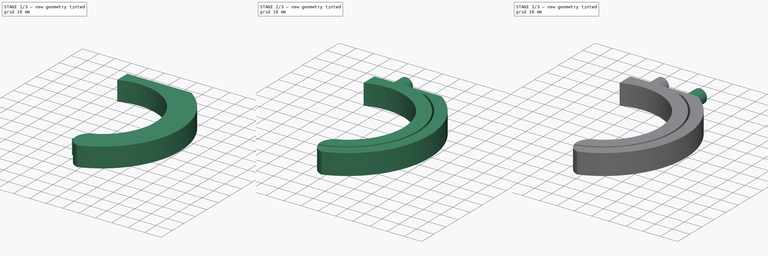
[diagram: build sequence overview — one tinted view per stage of 3, left to right]
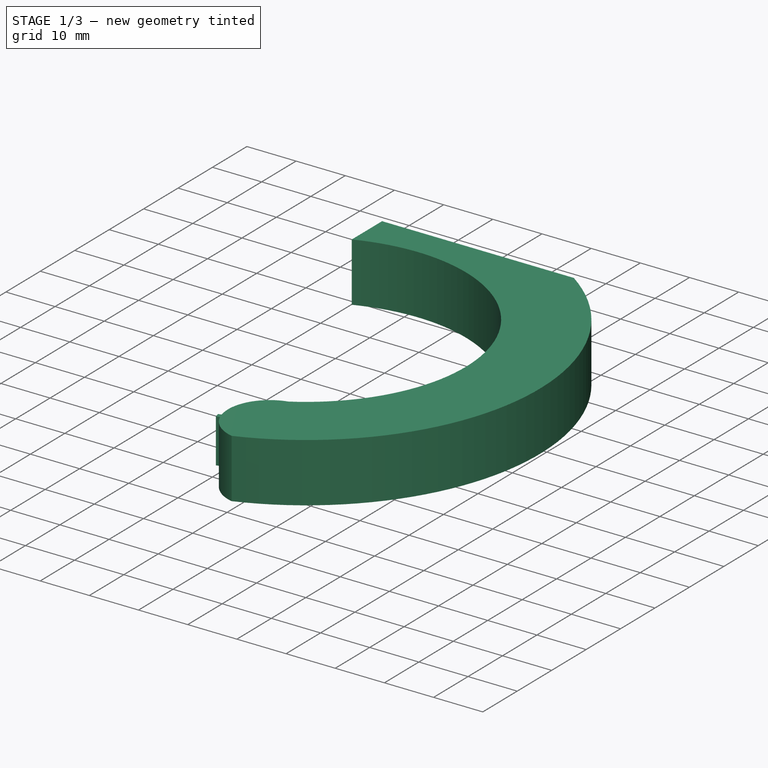
[diagram: stage 1 of 3 — iso view after this stage's code; geometry added in this stage tinted green]
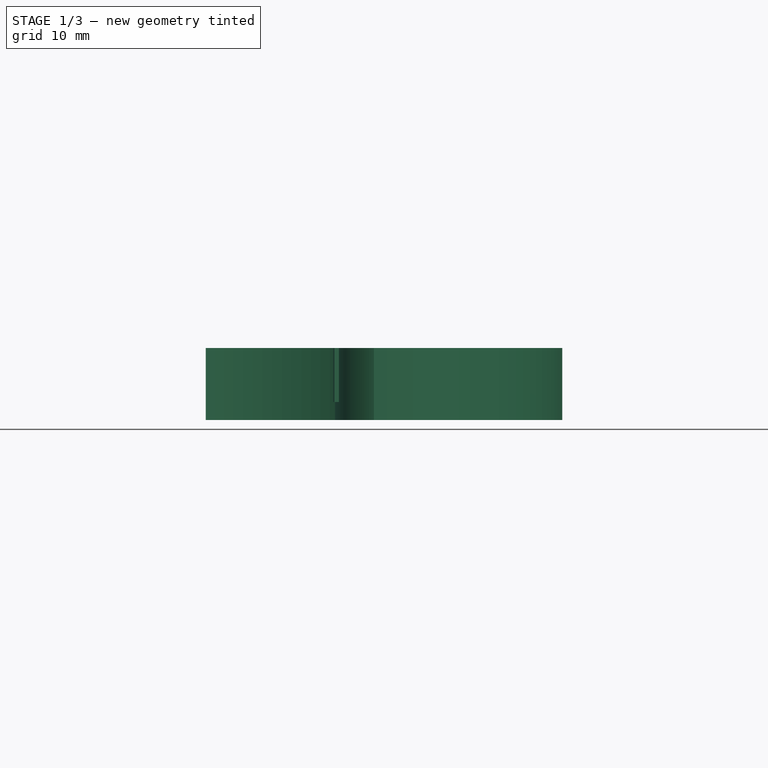
[diagram: stage 1 of 3 — front view after this stage's code; geometry added in this stage tinted green]
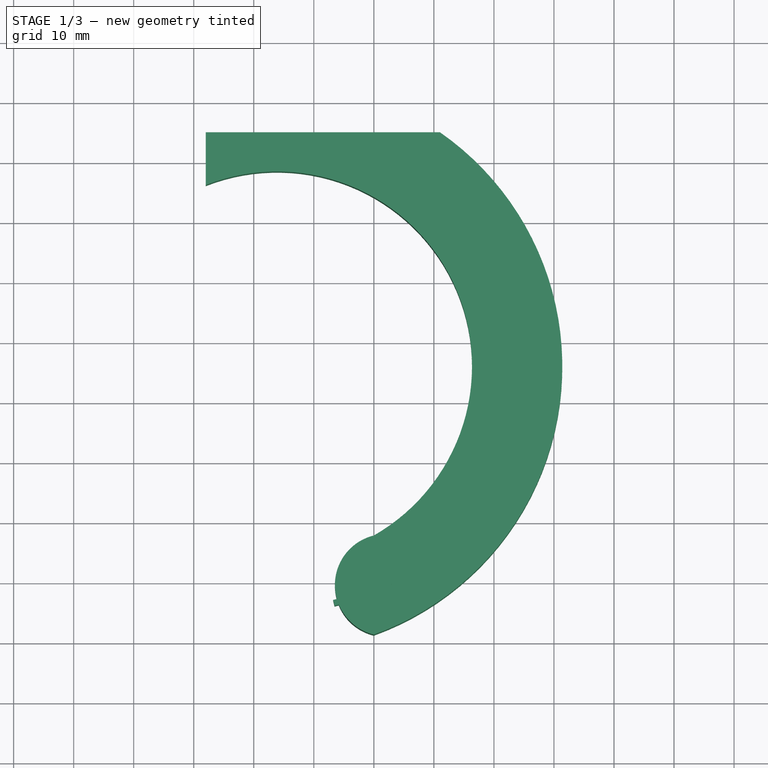
[diagram: stage 1 of 3 — top view after this stage's code; geometry added in this stage tinted green]
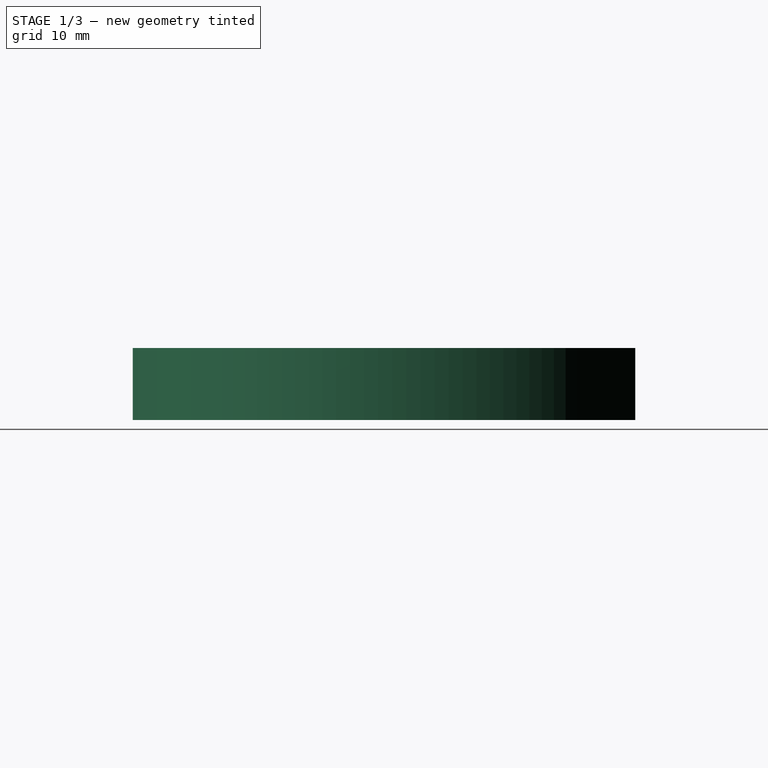
[diagram: stage 1 of 3 — right view after this stage's code; geometry added in this stage tinted green]
FCSTD DOCUMENT  (FreeCAD 0.15R4671 (Git))
Label: Holder_V5_Left
License: All rights reserved
LicenseURL: http://en.wikipedia.org/wiki/All_rights_reserved
objects: Sketcher::SketchObject×3, Part::Cylinder×2, PartDesign::Pad×2, Part::Box×1, Part::Cut×1
note: 11 computed .brp shape members not serialized (recipe doc carries the construction recipe); baked Part::Feature solids carry a one-line shape summary decoded from their .brp

FEATURE [Sketcher::SketchObject] Sketch  label="Ref_sketch"
  Placement = pos=(0,-18,-4) rot=(1,0,0;3.14159rad)
  sketch-geometry (2):
    g0: Circle CenterX=4 CenterY=36 CenterZ=0 NormalX=0 NormalY=0 NormalZ=1 Radius=47.5
    g1: Circle CenterX=4 CenterY=36 CenterZ=0 NormalX=0 NormalY=0 NormalZ=1 Radius=32.5
  constraints (6):
    c: Radius(g0) = 47.5
    c: DistanceY(g-1,g0) = 36
    c: DistanceX(g-1,g0) = 4
    c: Radius(g1) = 32.5
    c: DistanceY(g-1,g1) = 36
    c: DistanceX(g-1,g1) = 4
FEATURE [Sketcher::SketchObject] Sketch001
  Placement = pos=(0,-18,-4) rot=(1,0,0;3.14159rad)
  sketch-geometry (5):
    g0: ArcOfCircle CenterX=3.89118 CenterY=36.0046 CenterZ=0 NormalX=0 NormalY=0 NormalZ=1 Radius=47.5 StartAngle=5.31976 EndAngle=7.50799
    g1: ArcOfCircle CenterX=3.89118 CenterY=36.0046 CenterZ=0 NormalX=0 NormalY=0 NormalZ=1 Radius=32.4611 StartAngle=4.33734 EndAngle=7.33471
    g2: ArcOfCircle CenterX=22 CenterY=72.4382 CenterZ=0 NormalX=0 NormalY=0 NormalZ=1 Radius=8.49045 StartAngle=1.80859 EndAngle=4.4746
    g3: LineSegment StartX=-8 StartY=-3 StartZ=0 EndX=31 EndY=-3 EndZ=0
    g4: LineSegment StartX=-8 StartY=5.8 StartZ=0 EndX=-8 EndY=-3 EndZ=0
  constraints (16):
    c: Radius(g0) = 47.5
    c: DistanceX(g-1,g0) = 31
    c: DistanceX(g-1,g0) = 20
    c: Coincident(g1,g0)
    c: DistanceY(g-1,g1) = 5.8
    c: Coincident(g2,g0)
    c: Coincident(g2,g1)
    c: DistanceX(g-1,g2) = 22
    c: Coincident(g3,g0)
    c: Horizontal(g3)
    c: DistanceX(g-1,g1) = -8
    c: DistanceX(g-1,g1) = 20
    c: Coincident(g4,g1)
    c: Coincident(g4,g3)
    c: Vertical(g4)
    c: Distance(g4) = 8.8
FEATURE [PartDesign::Pad] Pad
  Length = 12
  Length2 = 100
  Placement = pos=(0,-18,-4) rot=(1,0,0;3.14159rad)
  Sketch = -> Sketch001
  Type = 0
FEATURE [Sketcher::SketchObject] Sketch002
  Placement = pos=(11,-18,-4) rot=(-1,0,0;3.14159rad)
  sketch-geometry (4):
    g0: ArcOfCircle CenterX=-7 CenterY=36 CenterZ=0 NormalX=0 NormalY=0 NormalZ=1 Radius=41 StartAngle=5.21142 EndAngle=7.62126
    g1: ArcOfCircle CenterX=-7 CenterY=36 CenterZ=0 NormalX=0 NormalY=0 NormalZ=1 Radius=40 StartAngle=5.16342 EndAngle=7.6216
    g2: LineSegment StartX=2.45576 StartY=75.8947 StartZ=0 EndX=2.21187 EndY=74.9248 EndZ=0
    g3: LineSegment StartX=10.4356 StartY=0 StartZ=0 EndX=12.6214 EndY=0 EndZ=0
  constraints (11):
    c: Radius(g0) = 41
    c: DistanceX(g-1,g0) = -7
    c: DistanceY(g-1,g0) = 36
    c: DistanceY(g-1,g0) = 0
    c: Coincident(g1,g0)
    c: DistanceY(g-1,g1) = 0
    c: Coincident(g2,g0)
    c: Coincident(g2,g1)
    c: Coincident(g3,g1)
    c: Coincident(g3,g0)
    c: Radius(g1) = 40
FEATURE [PartDesign::Pad] Pad001
  Length = 9
  Length2 = 100
  Placement = pos=(11,-18,-4) rot=(-1,0,0;3.14159rad)
  Sketch = -> Sketch002
  Type = 0
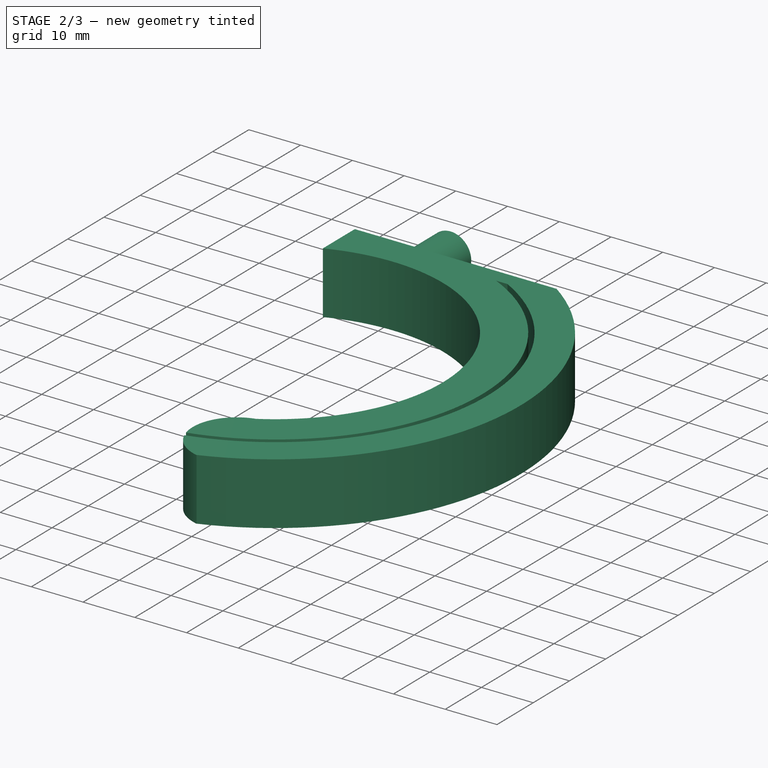
[diagram: stage 2 of 3 — iso view after this stage's code; geometry added in this stage tinted green]
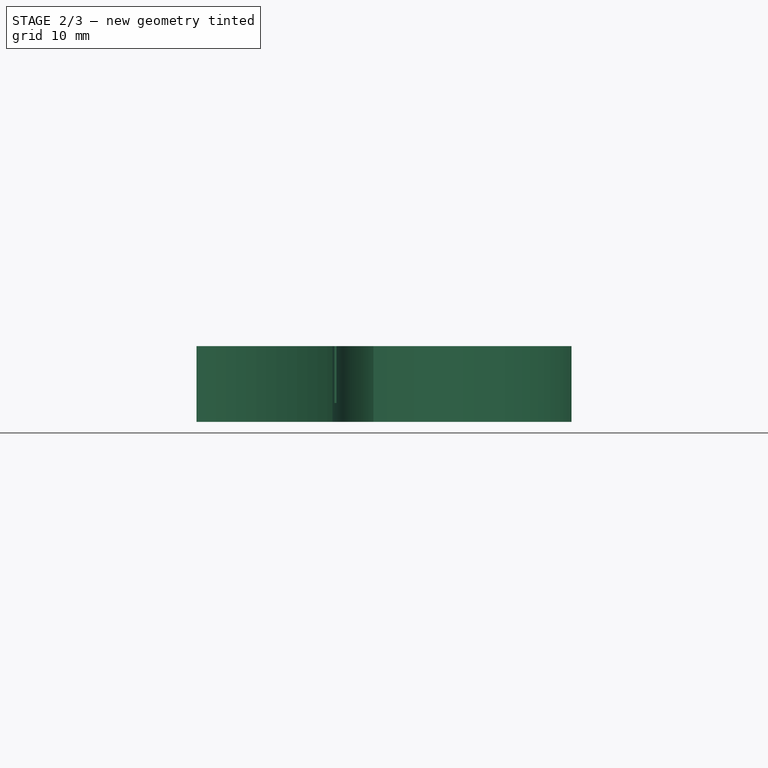
[diagram: stage 2 of 3 — front view after this stage's code; geometry added in this stage tinted green]
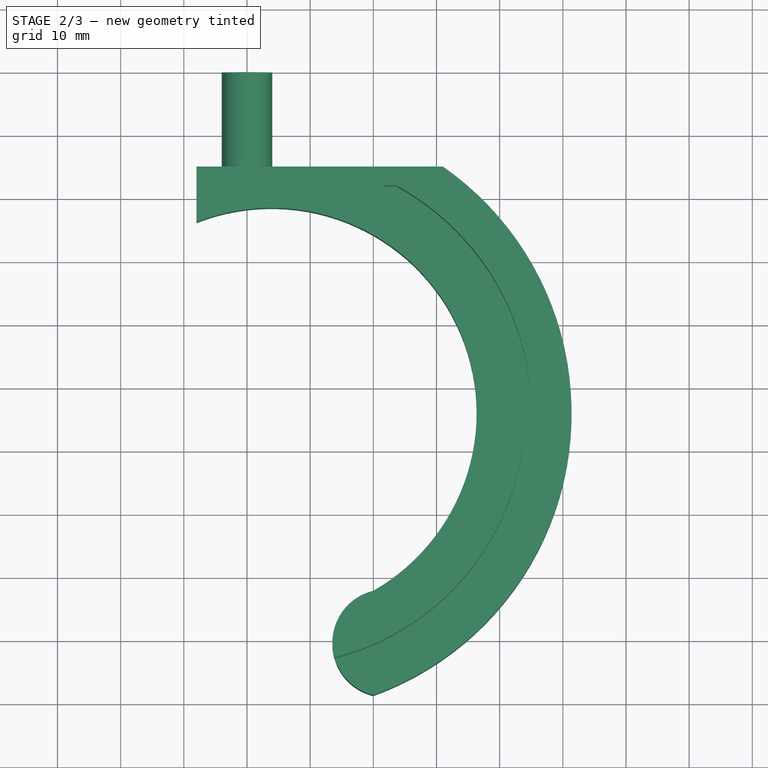
[diagram: stage 2 of 3 — top view after this stage's code; geometry added in this stage tinted green]
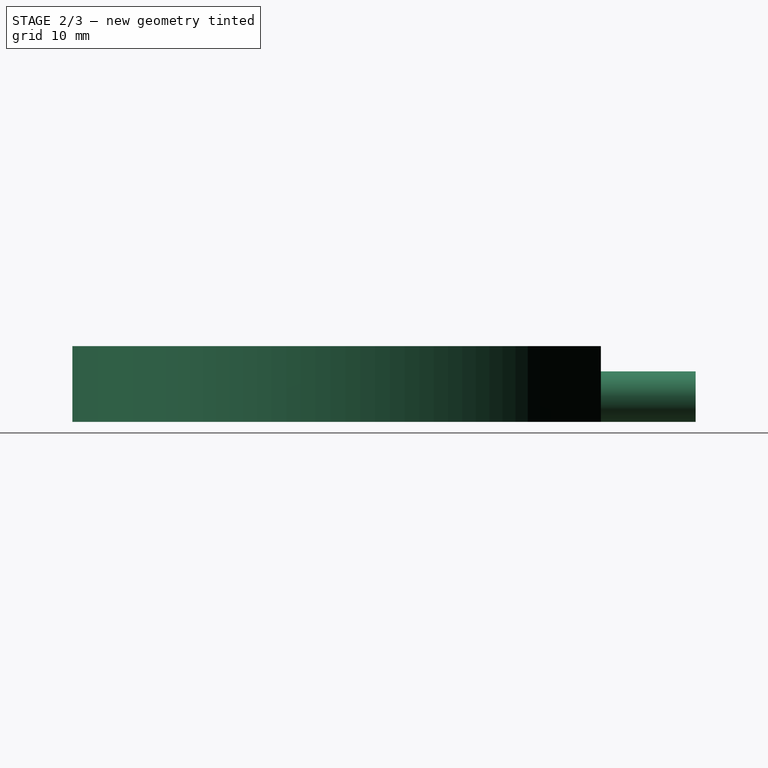
[diagram: stage 2 of 3 — right view after this stage's code; geometry added in this stage tinted green]
FEATURE [Part::Cylinder] Cylinder001  label="Pin1"
  Angle = 360
  Height = 15
  Placement = pos=(0,0,0) rot=(1,0,0;1.5708rad)
  Radius = 4
FEATURE [Part::Cut] Cut
  Base = -> Pad
  Placement = pos=(0,0,12) rot=(0,0,1;0rad)
  Tool = -> Pad001
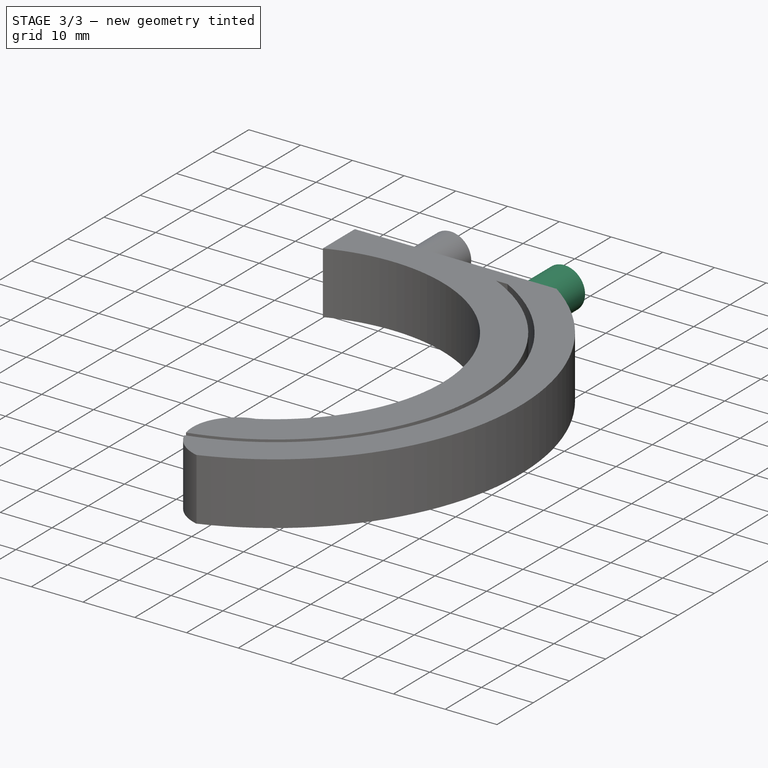
[diagram: stage 3 of 3 — iso view after this stage's code; geometry added in this stage tinted green]
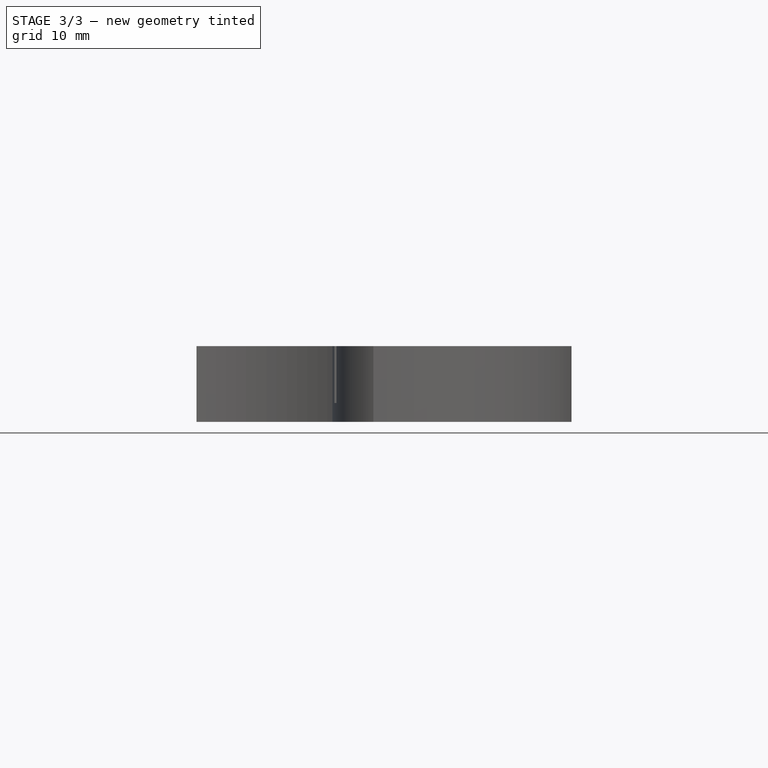
[diagram: stage 3 of 3 — front view after this stage's code; geometry added in this stage tinted green]
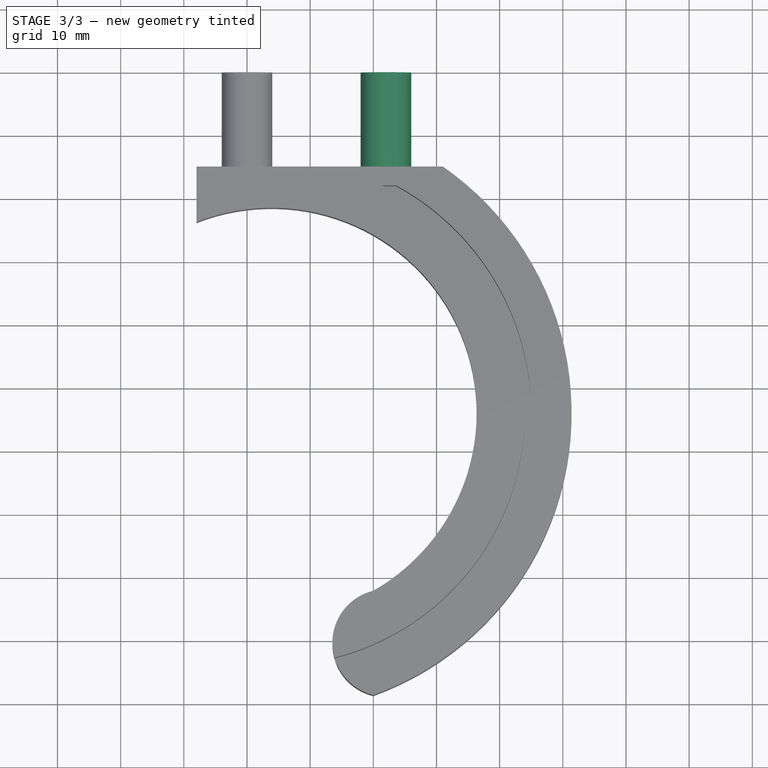
[diagram: stage 3 of 3 — top view after this stage's code; geometry added in this stage tinted green]
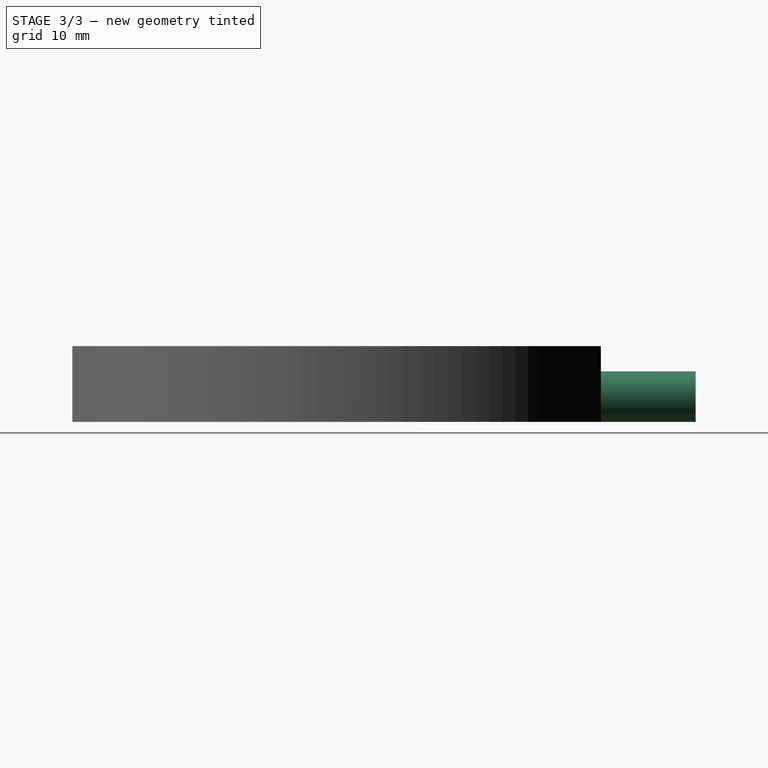
[diagram: stage 3 of 3 — right view after this stage's code; geometry added in this stage tinted green]
FEATURE [Part::Box] Box  label="Base"
  Height = 8
  Length = 39
  Placement = pos=(-8,-18,-4) rot=(0,0,1;0rad)
  Width = 3
FEATURE [Part::Cylinder] Cylinder  label="Pin2"
  Angle = 360
  Height = 15
  Placement = pos=(22,0,0) rot=(1,0,0;1.5708rad)
  Radius = 4
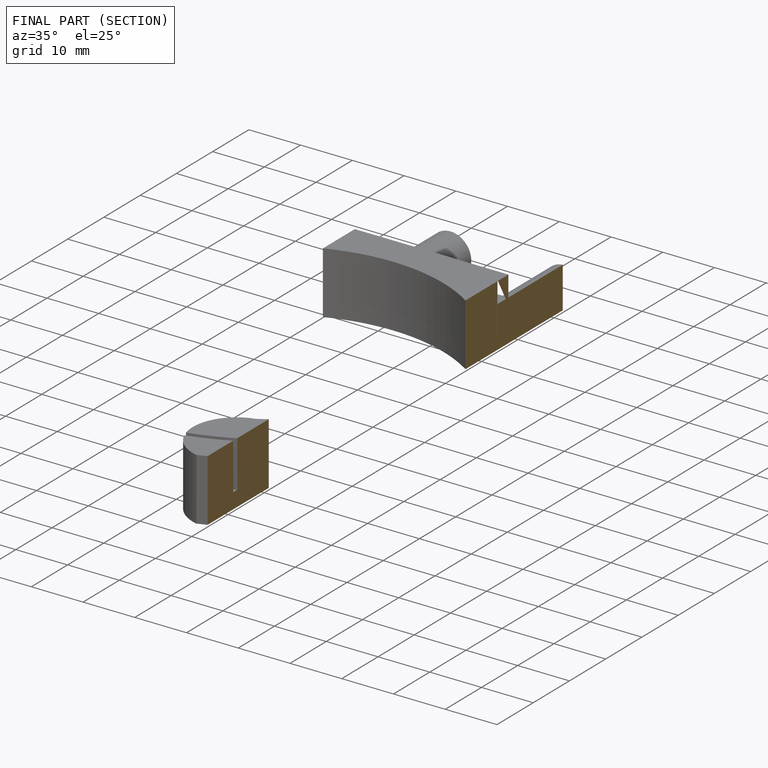
[diagram: finished part — half-section view (interior)]
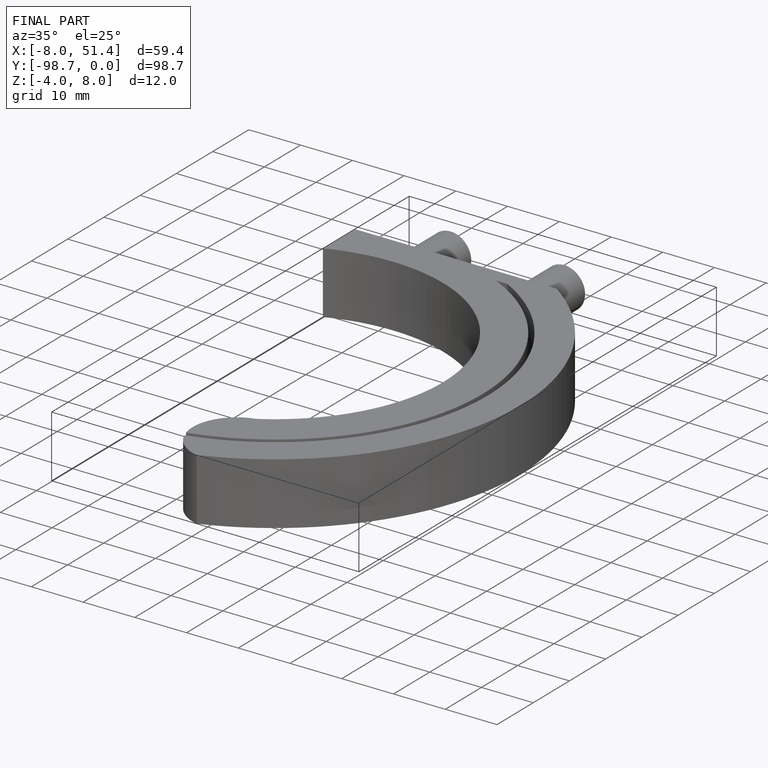
[diagram: finished part — iso view with bounding-box wireframe]
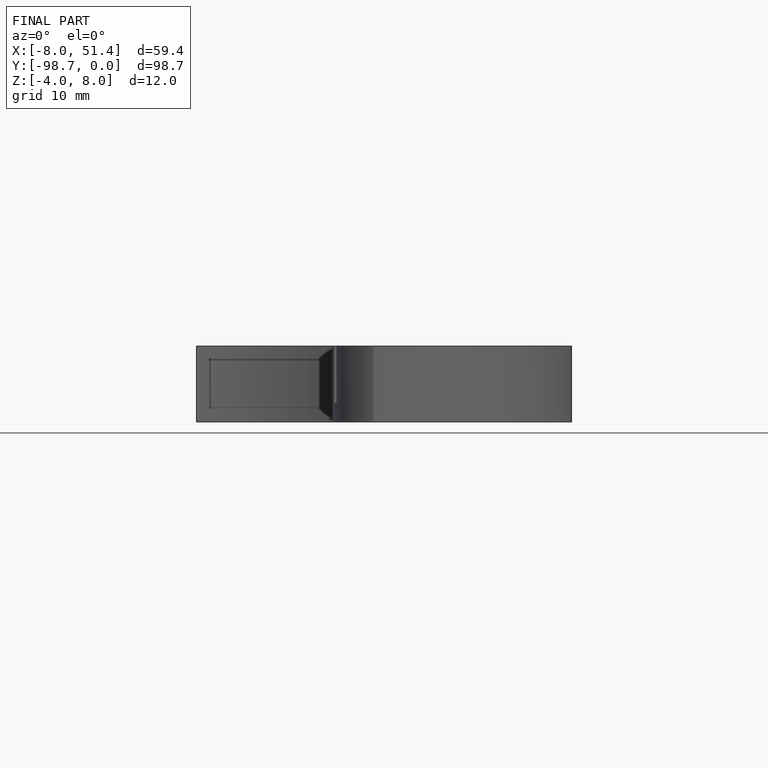
[diagram: finished part — front view with bounding-box wireframe]
